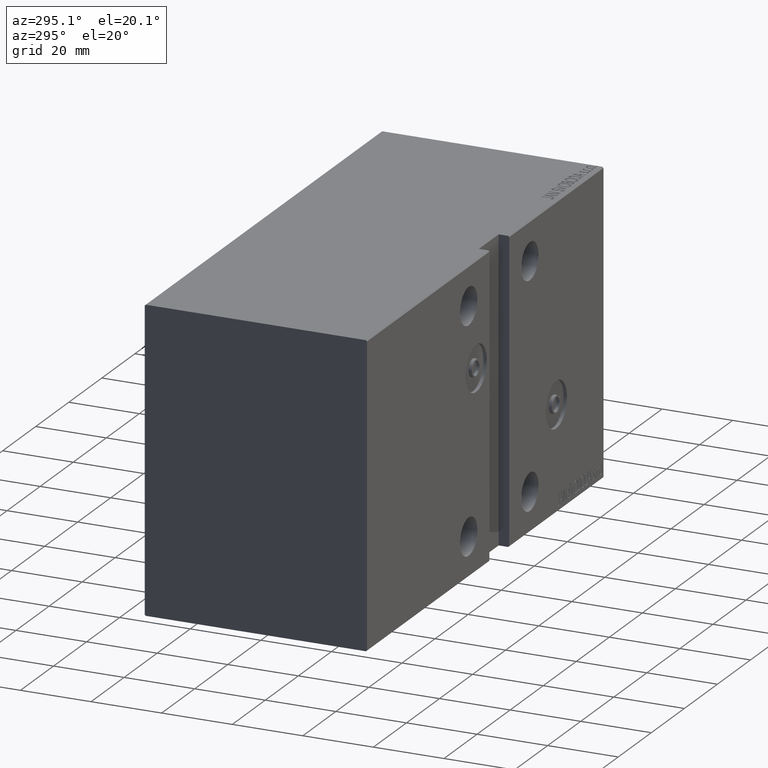
[diagram: clean part render]
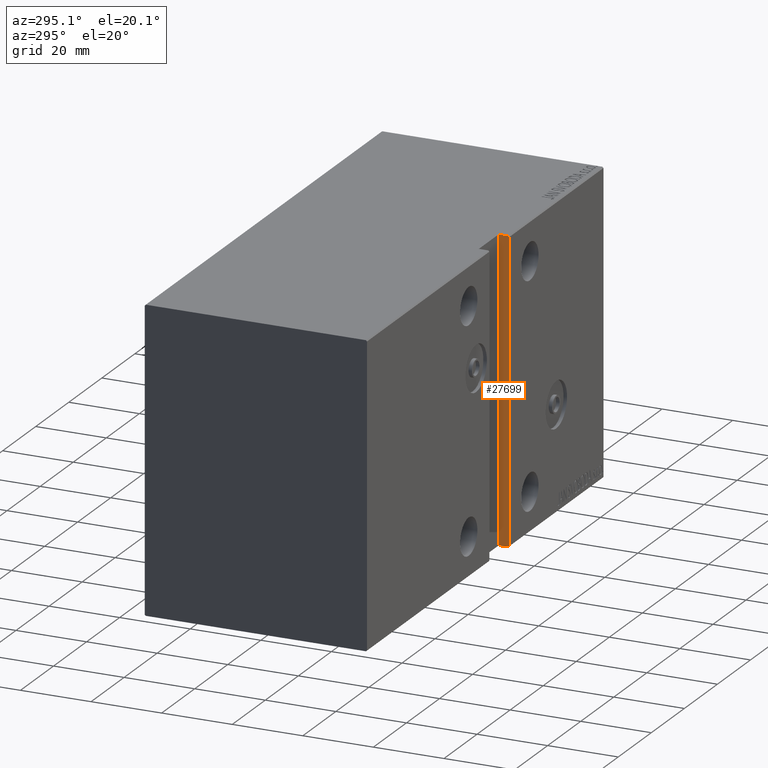
[diagram: same view with one face highlighted and labeled with its STEP entity id]
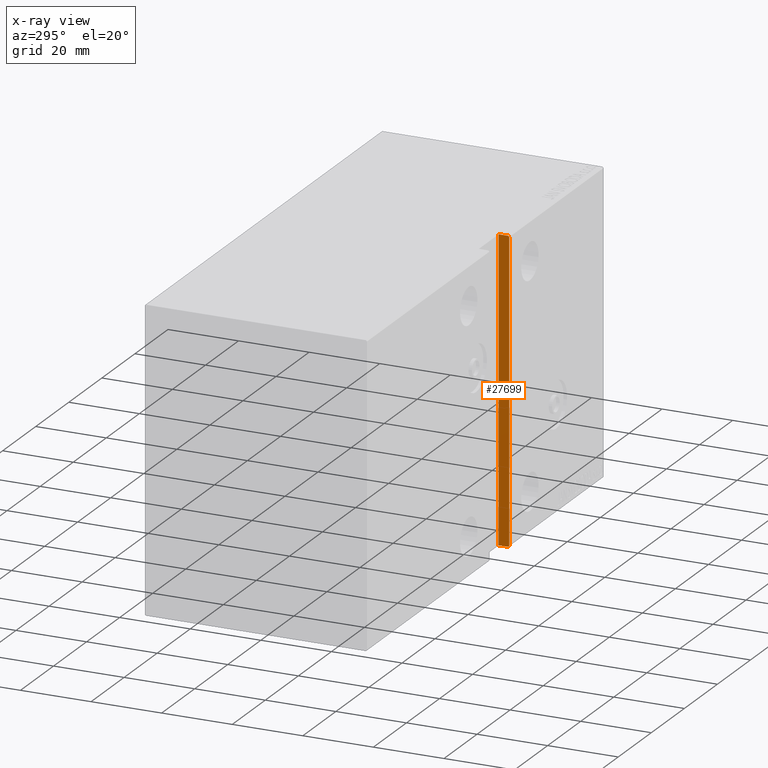
[diagram: x-ray of the same camera — body ghosted, the highlighted face saturated]
A machine part, auxiliary view. The second image highlights one B-rep face of the part: STEP entity #27699.
The next image is the same camera in x-ray: the body ghosted, the highlighted face saturated — about 0% of this face is hidden behind the body in this view.
In plain terms, the highlighted planar face has unit normal (-1, -0, 0).
Its self-contained STEP definition (entity closure, byte-faithful):
#689 = EDGE_CURVE ( 'NONE', #6644, #16362, #20423, .T. ) ;
#1239 = DIRECTION ( 'NONE',  ( -8.163404592832031500E-17, 0.000000000000000000, -1.000000000000000000 ) ) ;
#1882 = FACE_OUTER_BOUND ( 'NONE', #41232, .T. ) ;
#2030 = VECTOR ( 'NONE', #17401, 1000.000000000000114 ) ;
#2584 = VECTOR ( 'NONE', #43263, 1000.000000000000000 ) ;
#4399 = DIRECTION ( 'NONE',  ( 5.772398745160936264E-17, 0.7071067811865474617, 0.7071067811865474617 ) ) ;
#6452 = AXIS2_PLACEMENT_3D ( 'NONE', #31401, #17875, #1239 ) ;
#6644 = VERTEX_POINT ( 'NONE', #39135 ) ;
#7341 = CARTESIAN_POINT ( 'NONE',  ( 57.00000000000000000, 31.20000000000003482, 42.50000000000000711 ) ) ;
#8538 = CARTESIAN_POINT ( 'NONE',  ( 56.99999999999999289, 28.50000000000000000, -42.50000000000000711 ) ) ;
#10684 = EDGE_CURVE ( 'NONE', #35086, #16362, #27178, .T. ) ;
#12866 = ORIENTED_EDGE ( 'NONE', *, *, #689, .F. ) ;
#12942 = VECTOR ( 'NONE', #38718, 1000.000000000000000 ) ;
#13333 = CARTESIAN_POINT ( 'NONE',  ( 56.99999999999999289, 31.20000000000004192, -42.50000000000000711 ) ) ;
#13336 = LINE ( 'NONE', #40391, #29060 ) ;
#16020 = CARTESIAN_POINT ( 'NONE',  ( 57.00000000000000000, 31.50000000000000000, 42.50000000000000711 ) ) ;
#16362 = VERTEX_POINT ( 'NONE', #7341 ) ;
#16476 = ORIENTED_EDGE ( 'NONE', *, *, #20790, .T. ) ;
#17124 = VECTOR ( 'NONE', #32436, 1000.000000000000000 ) ;
#17401 = DIRECTION ( 'NONE',  ( 5.772398745160936264E-17, -0.7071067811865474617, 0.7071067811865474617 ) ) ;
#17622 = CARTESIAN_POINT ( 'NONE',  ( 57.00000000000000000, 29.85000000000001563, 43.85000000000002984 ) ) ;
#17875 = DIRECTION ( 'NONE',  ( 1.000000000000000000, 0.000000000000000000, -8.163404592832031500E-17 ) ) ;
#20423 = LINE ( 'NONE', #29744, #2584 ) ;
#20790 = EDGE_CURVE ( 'NONE', #37270, #24946, #34785, .T. ) ;
#21158 = ORIENTED_EDGE ( 'NONE', *, *, #28732, .F. ) ;
#23444 = ORIENTED_EDGE ( 'NONE', *, *, #10684, .T. ) ;
#24946 = VERTEX_POINT ( 'NONE', #28013 ) ;
#25109 = EDGE_CURVE ( 'NONE', #6644, #39922, #13336, .T. ) ;
#27088 = DIRECTION ( 'NONE',  ( -8.163404592832031500E-17, 0.000000000000000000, -1.000000000000000000 ) ) ;
#27178 = LINE ( 'NONE', #17622, #2030 ) ;
#27699 = ADVANCED_FACE ( 'NONE', ( #1882 ), #35389, .T. ) ;
#28013 = CARTESIAN_POINT ( 'NONE',  ( 56.99999999999999289, 31.50000000000000000, -42.20000000000004547 ) ) ;
#28732 = EDGE_CURVE ( 'NONE', #35086, #24946, #29322, .T. ) ;
#29060 = VECTOR ( 'NONE', #27088, 1000.000000000000000 ) ;
#29322 = LINE ( 'NONE', #16020, #17124 ) ;
#29744 = CARTESIAN_POINT ( 'NONE',  ( 57.00000000000000000, 28.50000000000000000, 42.50000000000000711 ) ) ;
#31401 = CARTESIAN_POINT ( 'NONE',  ( 57.00000000000000000, 28.50000000000000000, 42.50000000000000711 ) ) ;
#32436 = DIRECTION ( 'NONE',  ( -8.163404592832031500E-17, 0.000000000000000000, -1.000000000000000000 ) ) ;
#33326 = ORIENTED_EDGE ( 'NONE', *, *, #36117, .T. ) ;
#34785 = LINE ( 'NONE', #38764, #40819 ) ;
#35086 = VERTEX_POINT ( 'NONE', #41852 ) ;
#35389 = PLANE ( 'NONE',  #6452 ) ;
#36117 = EDGE_CURVE ( 'NONE', #39922, #37270, #39143, .T. ) ;
#37270 = VERTEX_POINT ( 'NONE', #13333 ) ;
#37448 = ORIENTED_EDGE ( 'NONE', *, *, #25109, .T. ) ;
#38718 = DIRECTION ( 'NONE',  ( -0.000000000000000000, 1.000000000000000000, -0.000000000000000000 ) ) ;
#38764 = CARTESIAN_POINT ( 'NONE',  ( 56.99999999999999289, 72.35000000000002274, -1.350000000000017852 ) ) ;
#39135 = CARTESIAN_POINT ( 'NONE',  ( 57.00000000000000000, 28.50000000000000000, 42.50000000000000711 ) ) ;
#39143 = LINE ( 'NONE', #8538, #12942 ) ;
#39922 = VERTEX_POINT ( 'NONE', #42741 ) ;
#40391 = CARTESIAN_POINT ( 'NONE',  ( 57.00000000000000000, 28.50000000000000000, 42.50000000000000711 ) ) ;
#40819 = VECTOR ( 'NONE', #4399, 1000.000000000000114 ) ;
#41232 = EDGE_LOOP ( 'NONE', ( #21158, #23444, #12866, #37448, #33326, #16476 ) ) ;
#41852 = CARTESIAN_POINT ( 'NONE',  ( 57.00000000000000000, 31.50000000000000000, 42.20000000000004547 ) ) ;
#42741 = CARTESIAN_POINT ( 'NONE',  ( 56.99999999999999289, 28.50000000000000000, -42.50000000000000711 ) ) ;
#43263 = DIRECTION ( 'NONE',  ( -0.000000000000000000, 1.000000000000000000, -0.000000000000000000 ) ) ;